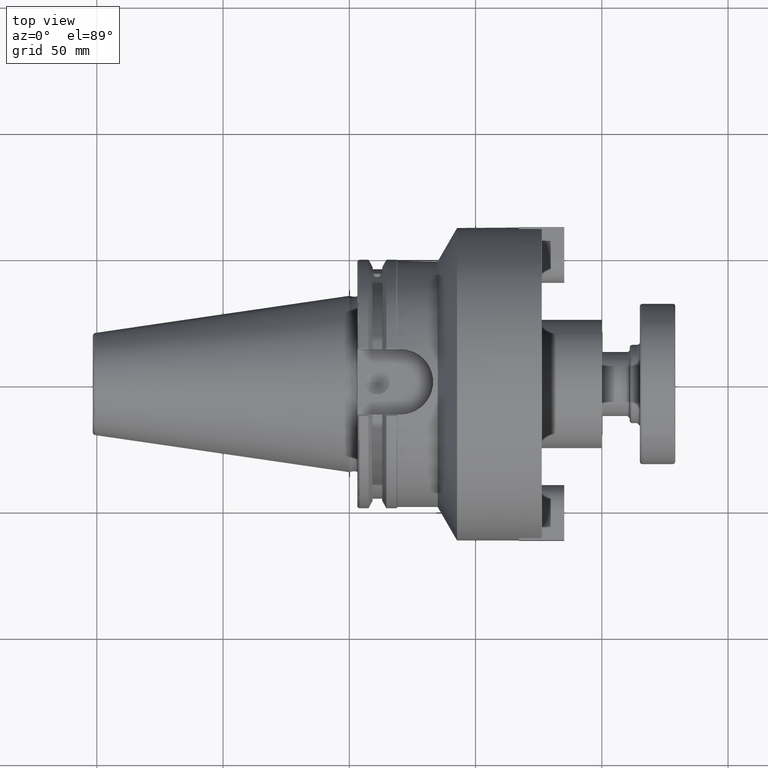
[diagram: clean part render]
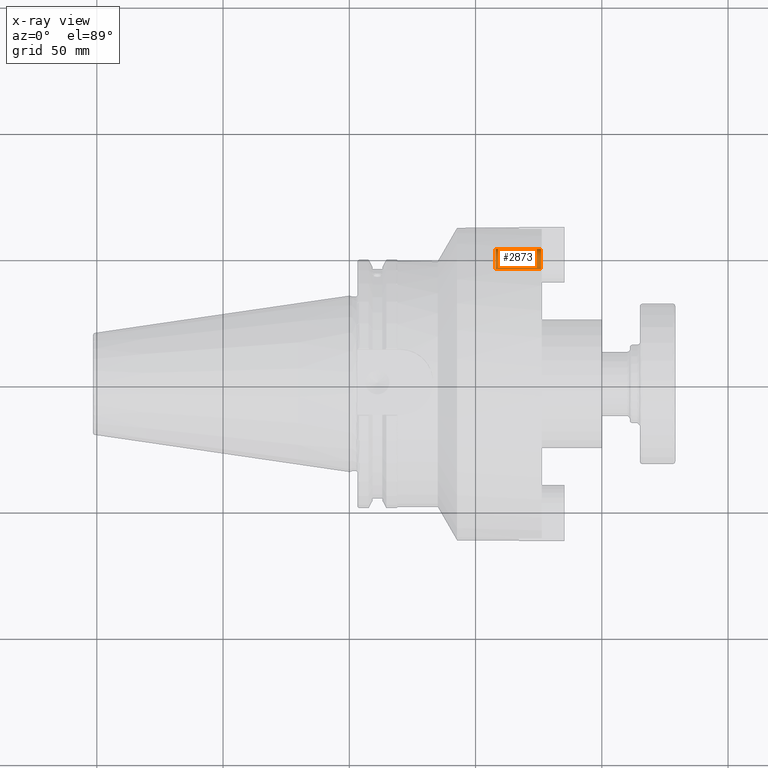
[diagram: x-ray — body ghosted, one internal face saturated and labeled with its STEP entity id]
A machine part, top view, then the same camera in x-ray: the body is ghosted and one INTERNAL B-rep face — a face not visible from any outside direction — is saturated and labeled: STEP entity #2873.
In plain terms, the highlighted cylindrical surface (bore or boss wall) has radius 3.9624 mm, axis along (-1, -0, -0).
Its self-contained STEP definition (entity closure, byte-faithful):
#586=CYLINDRICAL_SURFACE('',#3280,0.156);
#735=CIRCLE('',#3278,0.156);
#736=CIRCLE('',#3279,0.156);
#737=CIRCLE('',#3281,0.156);
#738=CIRCLE('',#3282,0.156);
#878=FACE_OUTER_BOUND('',#1041,.T.);
#1041=EDGE_LOOP('',(#2489,#2490,#2491,#2492,#2493,#2494));
#1200=LINE('',#5471,#1359);
#1359=VECTOR('',#3928,0.156);
#1579=VERTEX_POINT('',#5461);
#1580=VERTEX_POINT('',#5463);
#1581=VERTEX_POINT('',#5467);
#1582=VERTEX_POINT('',#5468);
#1894=EDGE_CURVE('',#1579,#1580,#735,.T.);
#1895=EDGE_CURVE('',#1580,#1579,#736,.T.);
#1896=EDGE_CURVE('',#1581,#1582,#737,.T.);
#1897=EDGE_CURVE('',#1582,#1581,#738,.T.);
#1898=EDGE_CURVE('',#1582,#1580,#1200,.T.);
#2489=ORIENTED_EDGE('',*,*,#1896,.F.);
#2490=ORIENTED_EDGE('',*,*,#1897,.F.);
#2491=ORIENTED_EDGE('',*,*,#1898,.T.);
#2492=ORIENTED_EDGE('',*,*,#1894,.F.);
#2493=ORIENTED_EDGE('',*,*,#1895,.F.);
#2494=ORIENTED_EDGE('',*,*,#1898,.F.);
#2873=ADVANCED_FACE('',(#878),#586,.T.);
#3278=AXIS2_PLACEMENT_3D('',#5464,#3918,#3919);
#3279=AXIS2_PLACEMENT_3D('',#5465,#3920,#3921);
#3280=AXIS2_PLACEMENT_3D('',#5466,#3922,#3923);
#3281=AXIS2_PLACEMENT_3D('',#5469,#3924,#3925);
#3282=AXIS2_PLACEMENT_3D('',#5470,#3926,#3927);
#3918=DIRECTION('center_axis',(-1.,8.71022722361728E-19,0.));
#3919=DIRECTION('ref_axis',(0.,-1.,1.22464679914735E-16));
#3920=DIRECTION('center_axis',(-1.,8.71022722361728E-19,0.));
#3921=DIRECTION('ref_axis',(0.,-1.,1.22464679914735E-16));
#3922=DIRECTION('center_axis',(1.,-8.71022722361728E-19,0.));
#3923=DIRECTION('ref_axis',(0.,1.,0.));
#3924=DIRECTION('center_axis',(1.,-8.71022722361728E-19,0.));
#3925=DIRECTION('ref_axis',(0.,-1.,0.));
#3926=DIRECTION('center_axis',(1.,-8.71022722361728E-19,0.));
#3927=DIRECTION('ref_axis',(0.,-1.,0.));
#3928=DIRECTION('',(-1.,8.71022722361728E-19,0.));
#5461=CARTESIAN_POINT('',(0.00900000000000013,-1.84590622294287E-17,0.156));
#5463=CARTESIAN_POINT('',(0.00900000000000013,-0.156,-1.91044900666987E-17));
#5464=CARTESIAN_POINT('Origin',(0.00900000000000013,6.45427837270041E-19,
0.));
#5465=CARTESIAN_POINT('Origin',(0.00900000000000013,6.45427837270041E-19,
0.));
#5466=CARTESIAN_POINT('Origin',(0.444448937,2.6614191871478E-19,0.));
#5467=CARTESIAN_POINT('',(0.71695,0.156,1.91044900666987E-17));
#5468=CARTESIAN_POINT('',(0.71695,-0.156,-1.91044900666987E-17));
#5469=CARTESIAN_POINT('Origin',(0.71695,2.87873009740551E-20,0.));
#5470=CARTESIAN_POINT('Origin',(0.71695,2.87873009740551E-20,0.));
#5471=CARTESIAN_POINT('',(0.444448937,-0.156,-1.91044900666987E-17));